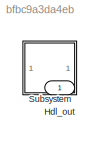
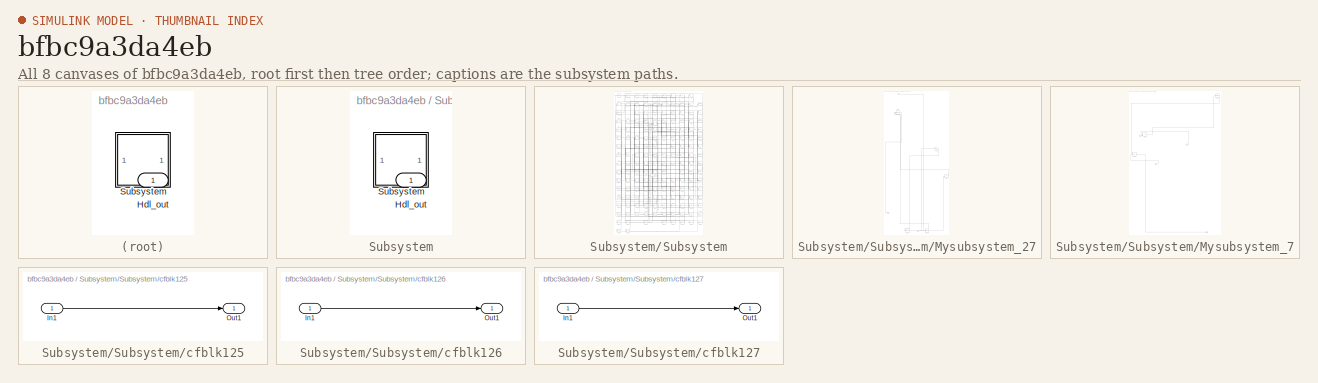
[diagram: thumbnail index - all 8 canvases of the model, root first then tree order]
MODEL slx_bfbc9a3da4eb
KIND model
CONFIG AbsTol = auto
CONFIG EnableMultiTasking = off
CONFIG FixedStep = auto
CONFIG MaxStep = auto
CONFIG MinStep = auto
CONFIG RelTol = 1e-3
CONFIG SampleTimeConstraint = Unconstrained
CONFIG SolverName = VariableStepAuto
CONFIG StartTime = 0.0
CONFIG StopTime = 10.0
BLOCK [Outport] Hdl_out
  OutDataTypeStr = uint8
BLOCK [SubSystem] Subsystem
BLOCK [Outport] Subsystem/Hdl_out
  OutDataTypeStr = uint8
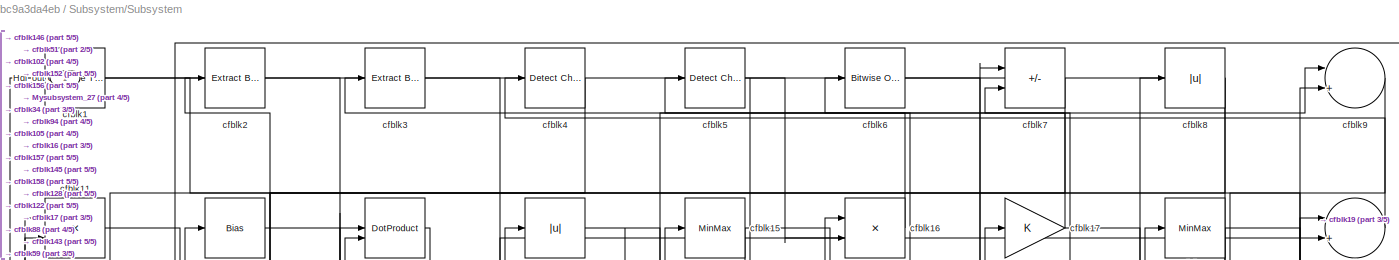
[diagram: Subsystem/Subsystem - part 1/5, full width, top band]
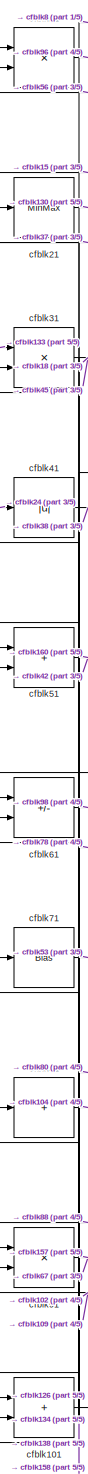
[diagram: Subsystem/Subsystem - part 2/5, middle left region]
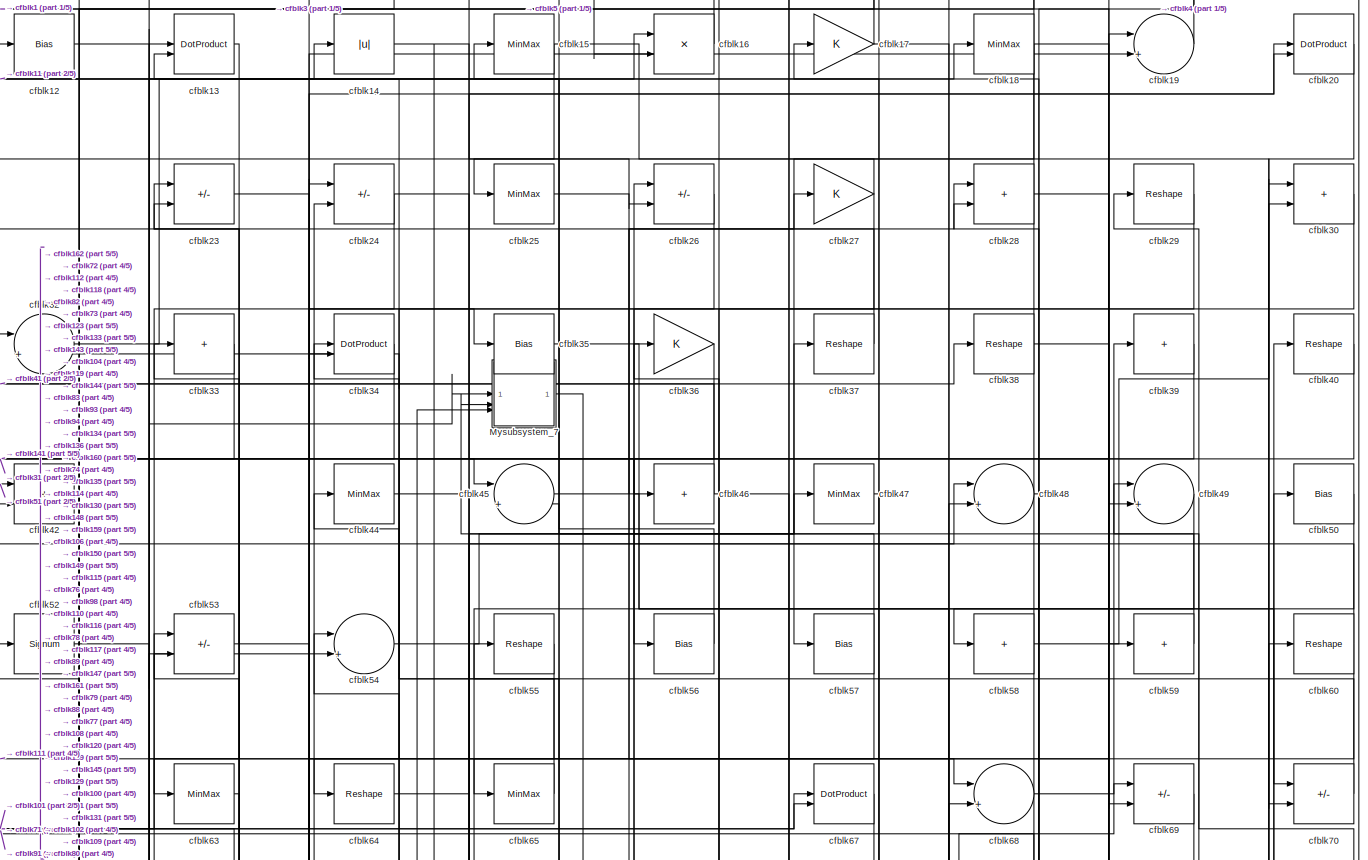
[diagram: Subsystem/Subsystem - part 3/5, full width, top band]
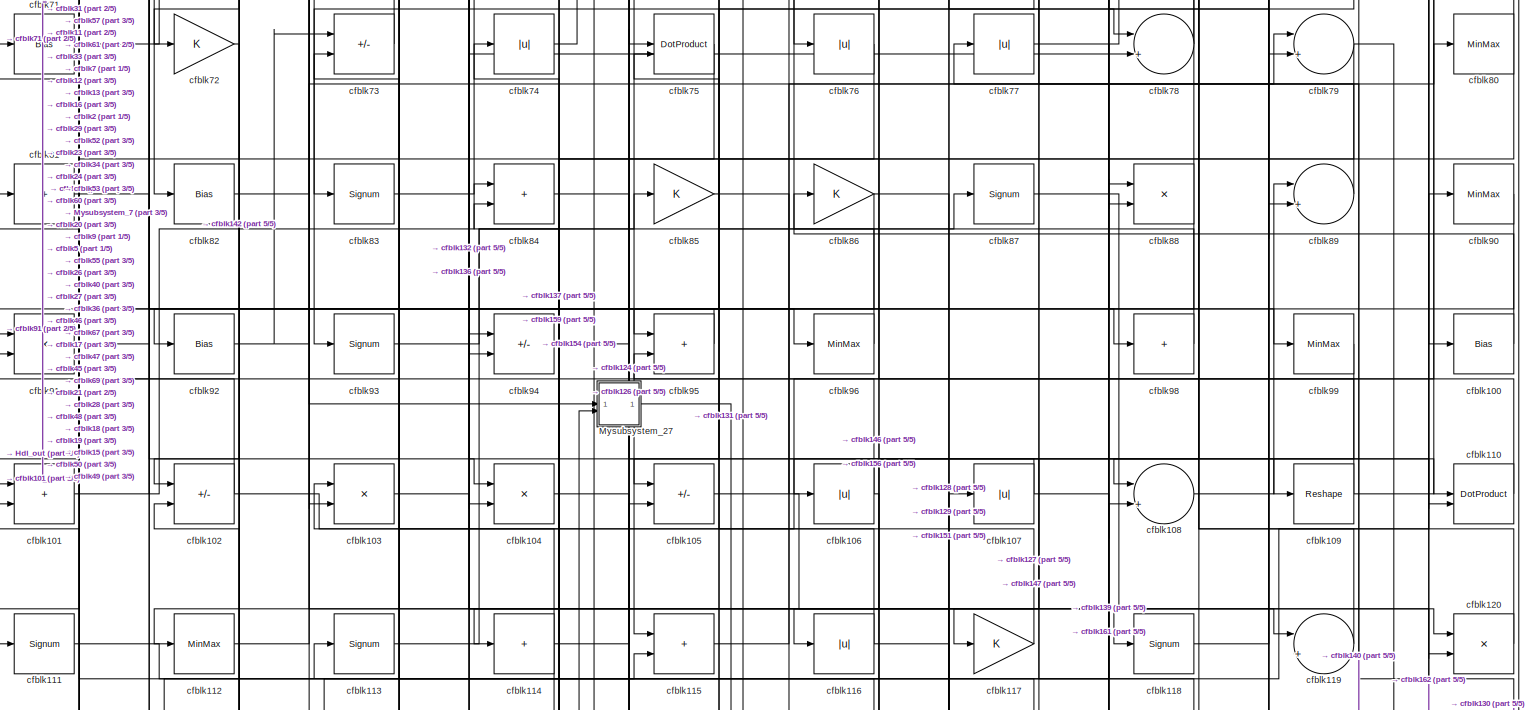
[diagram: Subsystem/Subsystem - part 4/5, full width, middle band]
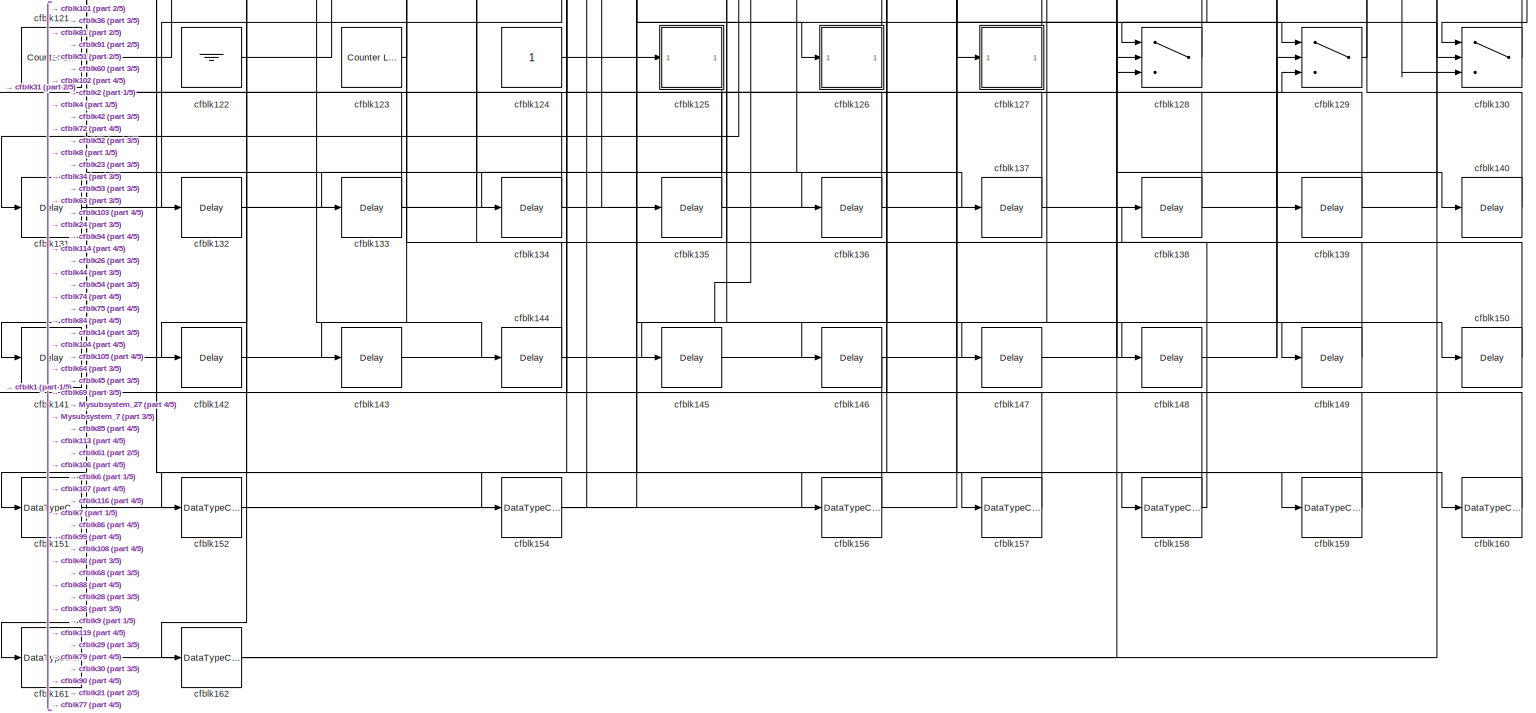
[diagram: Subsystem/Subsystem - part 5/5, full width, bottom band]
BLOCK [SubSystem] Subsystem/Subsystem
BLOCK [Outport] Subsystem/Subsystem/Hdl_out
  OutDataTypeStr = uint8
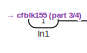
[diagram: Subsystem/Subsystem/Mysubsystem_27 - part 1/4, top left region]
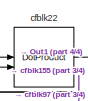
[diagram: Subsystem/Subsystem/Mysubsystem_27 - part 2/4, top left region]
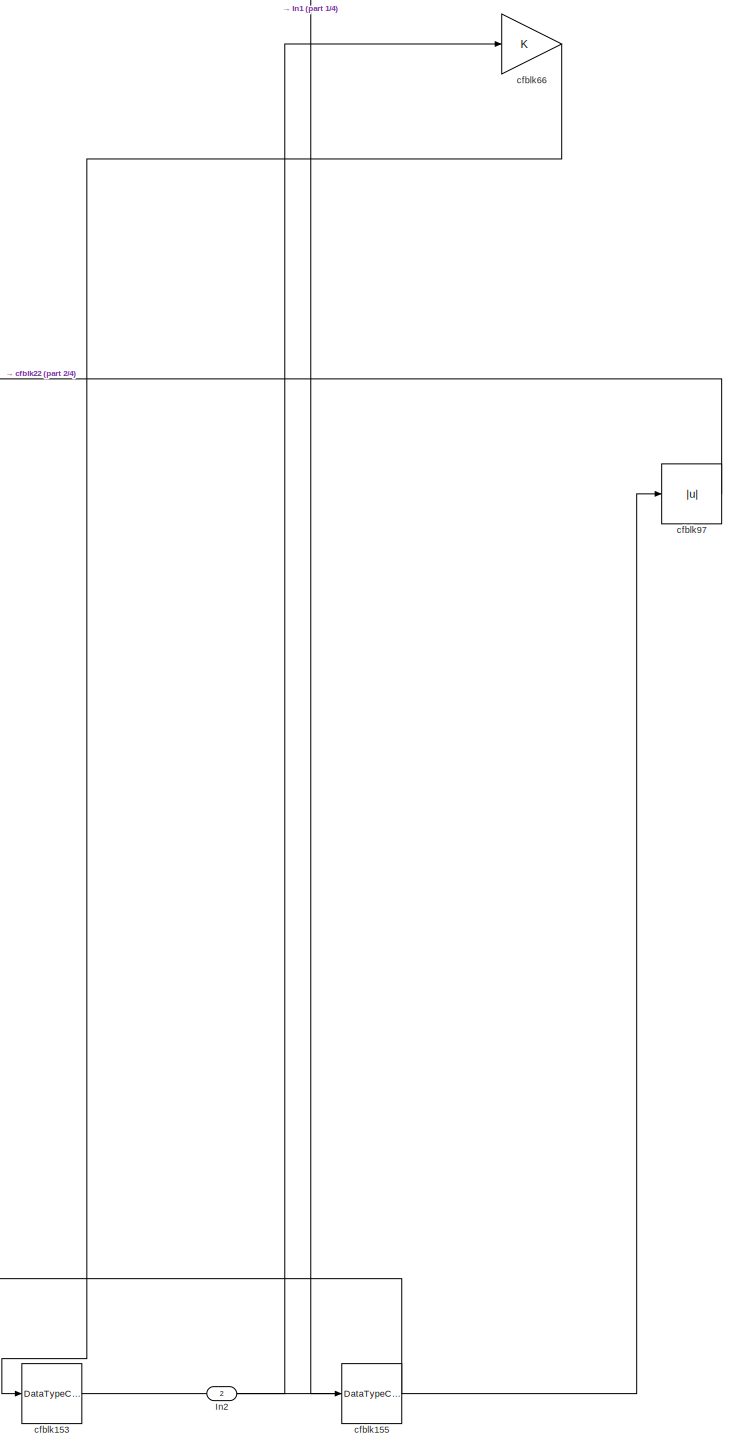
[diagram: Subsystem/Subsystem/Mysubsystem_27 - part 3/4, bottom center region]
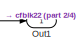
[diagram: Subsystem/Subsystem/Mysubsystem_27 - part 4/4, bottom left region]
BLOCK [SubSystem] Subsystem/Subsystem/Mysubsystem_27
  RTWFcnName = Mysubsystem_27
  RTWFcnNameOpts = User specified
  RTWFileNameOpts = Use function name
  RTWSystemCode = Reusable function
  TreatAsAtomicUnit = on
BLOCK [Inport] Subsystem/Subsystem/Mysubsystem_27/In1
BLOCK [Inport] Subsystem/Subsystem/Mysubsystem_27/In2
  Port = 2
BLOCK [Outport] Subsystem/Subsystem/Mysubsystem_27/Out1
BLOCK [DataTypeConversion] Subsystem/Subsystem/Mysubsystem_27/cfblk153
  OutDataTypeStr = uint8
  RndMeth = Floor
  SaturateOnIntegerOverflow = off
BLOCK [DataTypeConversion] Subsystem/Subsystem/Mysubsystem_27/cfblk155
  OutDataTypeStr = uint8
  RndMeth = Floor
  SaturateOnIntegerOverflow = off
BLOCK [DotProduct] Subsystem/Subsystem/Mysubsystem_27/cfblk22
  OutDataTypeStr = Inherit: Inherit via internal rule
BLOCK [Gain] Subsystem/Subsystem/Mysubsystem_27/cfblk66
BLOCK [Abs] Subsystem/Subsystem/Mysubsystem_27/cfblk97
  SaturateOnIntegerOverflow = off
BLOCK [SubSystem] Subsystem/Subsystem/Mysubsystem_7
  RTWFcnName = Mysubsystem_7
  RTWFcnNameOpts = User specified
  RTWFileNameOpts = Use function name
  RTWSystemCode = Reusable function
  TreatAsAtomicUnit = on
BLOCK [Inport] Subsystem/Subsystem/Mysubsystem_7/In1
BLOCK [Inport] Subsystem/Subsystem/Mysubsystem_7/In2
  Port = 2
BLOCK [Inport] Subsystem/Subsystem/Mysubsystem_7/In3
  Port = 3
BLOCK [Outport] Subsystem/Subsystem/Mysubsystem_7/Out1
BLOCK [MinMax] Subsystem/Subsystem/Mysubsystem_7/cfblk10
BLOCK [Sum] Subsystem/Subsystem/Mysubsystem_7/cfblk43
  IconShape = rectangular
BLOCK [Sum] Subsystem/Subsystem/Mysubsystem_7/cfblk62
  IconShape = rectangular
  Inputs = +-
BLOCK [Reference] Subsystem/Subsystem/cfblk1  REF=hdlsllib/Logic and Bit
Operations/Compare
To Constant
  SourceBlock = hdlsllib/Logic and Bit\nOperations/Compare\nTo Constant
  SourceType = Compare To Constant
BLOCK [Bias] Subsystem/Subsystem/cfblk100
  Bias = 0.0
  SaturateOnIntegerOverflow = off
BLOCK [Sum] Subsystem/Subsystem/cfblk101
  IconShape = rectangular
  OutDataTypeStr = uint8
BLOCK [Sum] Subsystem/Subsystem/cfblk102
  IconShape = rectangular
  Inputs = +-
  OutDataTypeStr = uint8
BLOCK [Product] Subsystem/Subsystem/cfblk103
  Inputs = */
  OutDataTypeStr = uint8
  RndMeth = Zero
  SaturateOnIntegerOverflow = on
BLOCK [Product] Subsystem/Subsystem/cfblk104
  Inputs = */
  OutDataTypeStr = uint8
  RndMeth = Zero
  SaturateOnIntegerOverflow = on
BLOCK [Sum] Subsystem/Subsystem/cfblk105
  IconShape = rectangular
  Inputs = +-
  OutDataTypeStr = uint8
BLOCK [Abs] Subsystem/Subsystem/cfblk106
  OutDataTypeStr = uint8
  SaturateOnIntegerOverflow = off
BLOCK [Abs] Subsystem/Subsystem/cfblk107
  OutDataTypeStr = uint8
  SaturateOnIntegerOverflow = off
BLOCK [Sum] Subsystem/Subsystem/cfblk108
  Inputs = |++
  OutDataTypeStr = uint8
BLOCK [Reshape] Subsystem/Subsystem/cfblk109
BLOCK [Product] Subsystem/Subsystem/cfblk11
  Inputs = */
  OutDataTypeStr = uint8
  RndMeth = Zero
  SaturateOnIntegerOverflow = on
BLOCK [DotProduct] Subsystem/Subsystem/cfblk110
  OutDataTypeStr = uint8
BLOCK [Signum] Subsystem/Subsystem/cfblk111
BLOCK [MinMax] Subsystem/Subsystem/cfblk112
  OutDataTypeStr = uint8
BLOCK [Signum] Subsystem/Subsystem/cfblk113
BLOCK [Sum] Subsystem/Subsystem/cfblk114
  IconShape = rectangular
  Inputs = +
  OutDataTypeStr = uint8
BLOCK [Sum] Subsystem/Subsystem/cfblk115
  IconShape = rectangular
  OutDataTypeStr = uint8
BLOCK [Abs] Subsystem/Subsystem/cfblk116
  OutDataTypeStr = uint8
  SaturateOnIntegerOverflow = off
BLOCK [Gain] Subsystem/Subsystem/cfblk117
  OutDataTypeStr = uint8
BLOCK [Signum] Subsystem/Subsystem/cfblk118
BLOCK [Sum] Subsystem/Subsystem/cfblk119
  Inputs = |++
  OutDataTypeStr = uint8
BLOCK [Bias] Subsystem/Subsystem/cfblk12
  Bias = 0.0
  SaturateOnIntegerOverflow = off
BLOCK [Product] Subsystem/Subsystem/cfblk120
  Inputs = */
  OutDataTypeStr = uint8
  RndMeth = Zero
  SaturateOnIntegerOverflow = on
BLOCK [Reference] Subsystem/Subsystem/cfblk121  REF=hdlsllib/Sources/Counter
Limited
  SourceBlock = hdlsllib/Sources/Counter\nLimited
  SourceType = Counter Limited
BLOCK [Ground] Subsystem/Subsystem/cfblk122
BLOCK [Reference] Subsystem/Subsystem/cfblk123  REF=hdlsllib/Sources/Counter
Limited
  SourceBlock = hdlsllib/Sources/Counter\nLimited
  SourceType = Counter Limited
BLOCK [Constant] Subsystem/Subsystem/cfblk124
  OutDataTypeStr = uint8
  SampleTime = -1
BLOCK [SubSystem] Subsystem/Subsystem/cfblk125
  LibrarySourceBlock = hdlsllib/Ports &\nSubsystems/Subsystem
BLOCK [Inport] Subsystem/Subsystem/cfblk125/In1
BLOCK [Outport] Subsystem/Subsystem/cfblk125/Out1
BLOCK [SubSystem] Subsystem/Subsystem/cfblk126
  LibrarySourceBlock = hdlsllib/Ports &\nSubsystems/Subsystem
BLOCK [Inport] Subsystem/Subsystem/cfblk126/In1
BLOCK [Outport] Subsystem/Subsystem/cfblk126/Out1
BLOCK [SubSystem] Subsystem/Subsystem/cfblk127
  LibrarySourceBlock = hdlsllib/Ports &\nSubsystems/Subsystem
BLOCK [Inport] Subsystem/Subsystem/cfblk127/In1
BLOCK [Outport] Subsystem/Subsystem/cfblk127/Out1
BLOCK [Switch] Subsystem/Subsystem/cfblk128
  InputSameDT = off
  OutDataTypeStr = uint8
  SaturateOnIntegerOverflow = off
BLOCK [Switch] Subsystem/Subsystem/cfblk129
  InputSameDT = off
  OutDataTypeStr = uint8
  SaturateOnIntegerOverflow = off
BLOCK [DotProduct] Subsystem/Subsystem/cfblk13
  OutDataTypeStr = uint8
BLOCK [Switch] Subsystem/Subsystem/cfblk130
  InputSameDT = off
  OutDataTypeStr = uint8
  SaturateOnIntegerOverflow = off
BLOCK [Delay] Subsystem/Subsystem/cfblk131
  InputPortMap = u0
  SampleTime = 1
BLOCK [Delay] Subsystem/Subsystem/cfblk132
  InputPortMap = u0
  SampleTime = 1
BLOCK [Delay] Subsystem/Subsystem/cfblk133
  InputPortMap = u0
  SampleTime = 1
BLOCK [Delay] Subsystem/Subsystem/cfblk134
  InputPortMap = u0
  SampleTime = 1
BLOCK [Delay] Subsystem/Subsystem/cfblk135
  InputPortMap = u0
  SampleTime = 1
BLOCK [Delay] Subsystem/Subsystem/cfblk136
  InputPortMap = u0
  SampleTime = 1
BLOCK [Delay] Subsystem/Subsystem/cfblk137
  InputPortMap = u0
  SampleTime = 1
BLOCK [Delay] Subsystem/Subsystem/cfblk138
  InputPortMap = u0
  SampleTime = 1
BLOCK [Delay] Subsystem/Subsystem/cfblk139
  InputPortMap = u0
  SampleTime = 1
BLOCK [Abs] Subsystem/Subsystem/cfblk14
  OutDataTypeStr = uint8
  SaturateOnIntegerOverflow = off
BLOCK [Delay] Subsystem/Subsystem/cfblk140
  InputPortMap = u0
  SampleTime = 1
BLOCK [Delay] Subsystem/Subsystem/cfblk141
  InputPortMap = u0
  SampleTime = 1
BLOCK [Delay] Subsystem/Subsystem/cfblk142
  InputPortMap = u0
  SampleTime = 1
BLOCK [Delay] Subsystem/Subsystem/cfblk143
  InputPortMap = u0
  SampleTime = 1
BLOCK [Delay] Subsystem/Subsystem/cfblk144
  InputPortMap = u0
  SampleTime = 1
BLOCK [Delay] Subsystem/Subsystem/cfblk145
  InputPortMap = u0
  SampleTime = 1
BLOCK [Delay] Subsystem/Subsystem/cfblk146
  InputPortMap = u0
  SampleTime = 1
BLOCK [Delay] Subsystem/Subsystem/cfblk147
  InputPortMap = u0
  SampleTime = 1
BLOCK [Delay] Subsystem/Subsystem/cfblk148
  InputPortMap = u0
  SampleTime = 1
BLOCK [Delay] Subsystem/Subsystem/cfblk149
  InputPortMap = u0
  SampleTime = 1
BLOCK [MinMax] Subsystem/Subsystem/cfblk15
  OutDataTypeStr = uint8
BLOCK [Delay] Subsystem/Subsystem/cfblk150
  InputPortMap = u0
  SampleTime = 1
BLOCK [DataTypeConversion] Subsystem/Subsystem/cfblk151
  OutDataTypeStr = uint8
  RndMeth = Floor
  SaturateOnIntegerOverflow = off
BLOCK [DataTypeConversion] Subsystem/Subsystem/cfblk152
  OutDataTypeStr = uint8
  RndMeth = Floor
  SaturateOnIntegerOverflow = off
BLOCK [DataTypeConversion] Subsystem/Subsystem/cfblk154
  OutDataTypeStr = uint8
  RndMeth = Floor
  SaturateOnIntegerOverflow = off
BLOCK [DataTypeConversion] Subsystem/Subsystem/cfblk156
  OutDataTypeStr = uint8
  RndMeth = Floor
  SaturateOnIntegerOverflow = off
BLOCK [DataTypeConversion] Subsystem/Subsystem/cfblk157
  OutDataTypeStr = uint8
  RndMeth = Floor
  SaturateOnIntegerOverflow = off
BLOCK [DataTypeConversion] Subsystem/Subsystem/cfblk158
  OutDataTypeStr = uint8
  RndMeth = Floor
  SaturateOnIntegerOverflow = off
BLOCK [DataTypeConversion] Subsystem/Subsystem/cfblk159
  OutDataTypeStr = uint8
  RndMeth = Floor
  SaturateOnIntegerOverflow = off
BLOCK [Product] Subsystem/Subsystem/cfblk16
  Inputs = */
  OutDataTypeStr = uint8
  RndMeth = Zero
  SaturateOnIntegerOverflow = on
BLOCK [DataTypeConversion] Subsystem/Subsystem/cfblk160
  OutDataTypeStr = uint8
  RndMeth = Floor
  SaturateOnIntegerOverflow = off
BLOCK [DataTypeConversion] Subsystem/Subsystem/cfblk161
  OutDataTypeStr = uint8
  RndMeth = Floor
  SaturateOnIntegerOverflow = off
BLOCK [DataTypeConversion] Subsystem/Subsystem/cfblk162
  OutDataTypeStr = uint8
  RndMeth = Floor
  SaturateOnIntegerOverflow = off
BLOCK [Gain] Subsystem/Subsystem/cfblk17
  OutDataTypeStr = uint8
BLOCK [MinMax] Subsystem/Subsystem/cfblk18
  OutDataTypeStr = uint8
BLOCK [Sum] Subsystem/Subsystem/cfblk19
  Inputs = |++
  OutDataTypeStr = uint8
BLOCK [Reference] Subsystem/Subsystem/cfblk2  REF=simulink/Logic and Bit
Operations/Extract Bits
  LibrarySourceBlock = hdlsllib/Logic and Bit\nOperations/Extract Bits
  SourceBlock = simulink/Logic and Bit\nOperations/Extract Bits
  SourceType = Extract Bits
BLOCK [DotProduct] Subsystem/Subsystem/cfblk20
  OutDataTypeStr = uint8
BLOCK [MinMax] Subsystem/Subsystem/cfblk21
  OutDataTypeStr = uint8
BLOCK [Sum] Subsystem/Subsystem/cfblk23
  IconShape = rectangular
  Inputs = +-
  OutDataTypeStr = uint8
BLOCK [Sum] Subsystem/Subsystem/cfblk24
  IconShape = rectangular
  Inputs = +-
  OutDataTypeStr = uint8
BLOCK [MinMax] Subsystem/Subsystem/cfblk25
  OutDataTypeStr = uint8
BLOCK [Sum] Subsystem/Subsystem/cfblk26
  IconShape = rectangular
  Inputs = +-
  OutDataTypeStr = uint8
BLOCK [Gain] Subsystem/Subsystem/cfblk27
  OutDataTypeStr = uint8
BLOCK [Sum] Subsystem/Subsystem/cfblk28
  IconShape = rectangular
  OutDataTypeStr = uint8
BLOCK [Reshape] Subsystem/Subsystem/cfblk29
BLOCK [Reference] Subsystem/Subsystem/cfblk3  REF=simulink/Logic and Bit
Operations/Extract Bits
  LibrarySourceBlock = hdlsllib/Logic and Bit\nOperations/Extract Bits
  SourceBlock = simulink/Logic and Bit\nOperations/Extract Bits
  SourceType = Extract Bits
BLOCK [Sum] Subsystem/Subsystem/cfblk30
  IconShape = rectangular
  OutDataTypeStr = uint8
BLOCK [Product] Subsystem/Subsystem/cfblk31
  Inputs = */
  OutDataTypeStr = uint8
  RndMeth = Zero
  SaturateOnIntegerOverflow = on
BLOCK [Sum] Subsystem/Subsystem/cfblk32
  Inputs = |++
  OutDataTypeStr = uint8
BLOCK [Sum] Subsystem/Subsystem/cfblk33
  IconShape = rectangular
  Inputs = +
  OutDataTypeStr = uint8
BLOCK [DotProduct] Subsystem/Subsystem/cfblk34
  OutDataTypeStr = uint8
BLOCK [Bias] Subsystem/Subsystem/cfblk35
  Bias = 0.0
  SaturateOnIntegerOverflow = off
BLOCK [Gain] Subsystem/Subsystem/cfblk36
  OutDataTypeStr = uint8
BLOCK [Reshape] Subsystem/Subsystem/cfblk37
BLOCK [Reshape] Subsystem/Subsystem/cfblk38
BLOCK [Sum] Subsystem/Subsystem/cfblk39
  IconShape = rectangular
  Inputs = +
  OutDataTypeStr = uint8
BLOCK [Reference] Subsystem/Subsystem/cfblk4  REF=simulink/Logic and Bit
Operations/Detect
Change
  LibrarySourceBlock = hdlsllib/Logic and Bit\nOperations/Detect\nChange
  SourceBlock = simulink/Logic and Bit\nOperations/Detect\nChange
  SourceType = Detect Change
BLOCK [Reshape] Subsystem/Subsystem/cfblk40
BLOCK [Abs] Subsystem/Subsystem/cfblk41
  OutDataTypeStr = uint8
  SaturateOnIntegerOverflow = off
BLOCK [Sum] Subsystem/Subsystem/cfblk42
  IconShape = rectangular
  OutDataTypeStr = uint8
BLOCK [MinMax] Subsystem/Subsystem/cfblk44
  OutDataTypeStr = uint8
BLOCK [Sum] Subsystem/Subsystem/cfblk45
  Inputs = |++
  OutDataTypeStr = uint8
BLOCK [Sum] Subsystem/Subsystem/cfblk46
  IconShape = rectangular
  Inputs = +
  OutDataTypeStr = uint8
BLOCK [MinMax] Subsystem/Subsystem/cfblk47
  OutDataTypeStr = uint8
BLOCK [Sum] Subsystem/Subsystem/cfblk48
  Inputs = |++
  OutDataTypeStr = uint8
BLOCK [Sum] Subsystem/Subsystem/cfblk49
  Inputs = |++
  OutDataTypeStr = uint8
BLOCK [Reference] Subsystem/Subsystem/cfblk5  REF=simulink/Logic and Bit
Operations/Detect
Change
  LibrarySourceBlock = hdlsllib/Logic and Bit\nOperations/Detect\nChange
  SourceBlock = simulink/Logic and Bit\nOperations/Detect\nChange
  SourceType = Detect Change
BLOCK [Bias] Subsystem/Subsystem/cfblk50
  Bias = 0.0
  SaturateOnIntegerOverflow = off
BLOCK [Sum] Subsystem/Subsystem/cfblk51
  IconShape = rectangular
  OutDataTypeStr = uint8
BLOCK [Signum] Subsystem/Subsystem/cfblk52
BLOCK [Sum] Subsystem/Subsystem/cfblk53
  IconShape = rectangular
  Inputs = +-
  OutDataTypeStr = uint8
BLOCK [Sum] Subsystem/Subsystem/cfblk54
  Inputs = |++
  OutDataTypeStr = uint8
BLOCK [Reshape] Subsystem/Subsystem/cfblk55
BLOCK [Bias] Subsystem/Subsystem/cfblk56
  Bias = 0.0
  SaturateOnIntegerOverflow = off
BLOCK [Bias] Subsystem/Subsystem/cfblk57
  Bias = 0.0
  SaturateOnIntegerOverflow = off
BLOCK [Sum] Subsystem/Subsystem/cfblk58
  IconShape = rectangular
  Inputs = +
  OutDataTypeStr = uint8
BLOCK [Sum] Subsystem/Subsystem/cfblk59
  IconShape = rectangular
  Inputs = +
  OutDataTypeStr = uint8
BLOCK [Reference] Subsystem/Subsystem/cfblk6  REF=simulink/Logic and Bit
Operations/Bitwise
Operator
  LibrarySourceBlock = hdlsllib/Logic and Bit\nOperations/Bitwise\nOperator
  SourceBlock = simulink/Logic and Bit\nOperations/Bitwise\nOperator
  SourceType = Bitwise Operator
BLOCK [Reshape] Subsystem/Subsystem/cfblk60
BLOCK [Sum] Subsystem/Subsystem/cfblk61
  IconShape = rectangular
  Inputs = +-
  OutDataTypeStr = uint8
BLOCK [MinMax] Subsystem/Subsystem/cfblk63
  OutDataTypeStr = uint8
BLOCK [Reshape] Subsystem/Subsystem/cfblk64
BLOCK [MinMax] Subsystem/Subsystem/cfblk65
  OutDataTypeStr = uint8
BLOCK [DotProduct] Subsystem/Subsystem/cfblk67
  OutDataTypeStr = uint8
BLOCK [Sum] Subsystem/Subsystem/cfblk68
  Inputs = |++
  OutDataTypeStr = uint8
BLOCK [Sum] Subsystem/Subsystem/cfblk69
  IconShape = rectangular
  Inputs = +-
  OutDataTypeStr = uint8
BLOCK [Sum] Subsystem/Subsystem/cfblk7
  IconShape = rectangular
  Inputs = +-
  OutDataTypeStr = uint8
BLOCK [Sum] Subsystem/Subsystem/cfblk70
  IconShape = rectangular
  Inputs = +-
  OutDataTypeStr = uint8
BLOCK [Bias] Subsystem/Subsystem/cfblk71
  Bias = 0.0
  SaturateOnIntegerOverflow = off
BLOCK [Gain] Subsystem/Subsystem/cfblk72
  OutDataTypeStr = uint8
BLOCK [Sum] Subsystem/Subsystem/cfblk73
  IconShape = rectangular
  Inputs = +-
  OutDataTypeStr = uint8
BLOCK [Abs] Subsystem/Subsystem/cfblk74
  OutDataTypeStr = uint8
  SaturateOnIntegerOverflow = off
BLOCK [DotProduct] Subsystem/Subsystem/cfblk75
  OutDataTypeStr = uint8
BLOCK [Abs] Subsystem/Subsystem/cfblk76
  OutDataTypeStr = uint8
  SaturateOnIntegerOverflow = off
BLOCK [Abs] Subsystem/Subsystem/cfblk77
  OutDataTypeStr = uint8
  SaturateOnIntegerOverflow = off
BLOCK [Sum] Subsystem/Subsystem/cfblk78
  Inputs = |++
  OutDataTypeStr = uint8
BLOCK [Sum] Subsystem/Subsystem/cfblk79
  Inputs = |++
  OutDataTypeStr = uint8
BLOCK [Abs] Subsystem/Subsystem/cfblk8
  OutDataTypeStr = uint8
  SaturateOnIntegerOverflow = off
BLOCK [MinMax] Subsystem/Subsystem/cfblk80
  OutDataTypeStr = uint8
BLOCK [Sum] Subsystem/Subsystem/cfblk81
  IconShape = rectangular
  Inputs = +
  OutDataTypeStr = uint8
BLOCK [Bias] Subsystem/Subsystem/cfblk82
  Bias = 0.0
  SaturateOnIntegerOverflow = off
BLOCK [Signum] Subsystem/Subsystem/cfblk83
BLOCK [Sum] Subsystem/Subsystem/cfblk84
  IconShape = rectangular
  OutDataTypeStr = uint8
BLOCK [Gain] Subsystem/Subsystem/cfblk85
  OutDataTypeStr = uint8
BLOCK [Gain] Subsystem/Subsystem/cfblk86
  OutDataTypeStr = uint8
BLOCK [Signum] Subsystem/Subsystem/cfblk87
BLOCK [Product] Subsystem/Subsystem/cfblk88
  Inputs = */
  OutDataTypeStr = uint8
  RndMeth = Zero
  SaturateOnIntegerOverflow = on
BLOCK [Sum] Subsystem/Subsystem/cfblk89
  Inputs = |++
  OutDataTypeStr = uint8
BLOCK [Sum] Subsystem/Subsystem/cfblk9
  Inputs = |++
  OutDataTypeStr = uint8
BLOCK [MinMax] Subsystem/Subsystem/cfblk90
  OutDataTypeStr = uint8
BLOCK [Product] Subsystem/Subsystem/cfblk91
  Inputs = */
  OutDataTypeStr = uint8
  RndMeth = Zero
  SaturateOnIntegerOverflow = on
BLOCK [Bias] Subsystem/Subsystem/cfblk92
  Bias = 0.0
  SaturateOnIntegerOverflow = off
BLOCK [Signum] Subsystem/Subsystem/cfblk93
BLOCK [Sum] Subsystem/Subsystem/cfblk94
  IconShape = rectangular
  Inputs = +-
  OutDataTypeStr = uint8
BLOCK [Sum] Subsystem/Subsystem/cfblk95
  IconShape = rectangular
  OutDataTypeStr = uint8
BLOCK [MinMax] Subsystem/Subsystem/cfblk96
  OutDataTypeStr = uint8
BLOCK [Sum] Subsystem/Subsystem/cfblk98
  IconShape = rectangular
  Inputs = +
  OutDataTypeStr = uint8
BLOCK [MinMax] Subsystem/Subsystem/cfblk99
  OutDataTypeStr = uint8
LINE Subsystem/Subsystem/Mysubsystem_27/In1:1 -> Subsystem/Subsystem/Mysubsystem_27/cfblk155:1
LINE Subsystem/Subsystem/Mysubsystem_27/In2:1 -> Subsystem/Subsystem/Mysubsystem_27/cfblk66:1
LINE Subsystem/Subsystem/Mysubsystem_27/cfblk153:1 -> Subsystem/Subsystem/Mysubsystem_27/cfblk97:1
LINE Subsystem/Subsystem/Mysubsystem_27/cfblk155:1 -> Subsystem/Subsystem/Mysubsystem_27/cfblk22:2
LINE Subsystem/Subsystem/Mysubsystem_27/cfblk22:1 -> Subsystem/Subsystem/Mysubsystem_27/Out1:1
LINE Subsystem/Subsystem/Mysubsystem_27/cfblk66:1 -> Subsystem/Subsystem/Mysubsystem_27/cfblk153:1
LINE Subsystem/Subsystem/Mysubsystem_27/cfblk97:1 -> Subsystem/Subsystem/Mysubsystem_27/cfblk22:1
LINE Subsystem/Subsystem/Mysubsystem_27:1 -> Subsystem/Subsystem/cfblk131:1
LINE Subsystem/Subsystem/Mysubsystem_7/In1:1 -> Subsystem/Subsystem/Mysubsystem_7/cfblk43:2
LINE Subsystem/Subsystem/Mysubsystem_7/In2:1 -> Subsystem/Subsystem/Mysubsystem_7/cfblk43:1
LINE Subsystem/Subsystem/Mysubsystem_7/In3:1 -> Subsystem/Subsystem/Mysubsystem_7/cfblk62:2
LINE Subsystem/Subsystem/Mysubsystem_7/cfblk10:1 -> Subsystem/Subsystem/Mysubsystem_7/cfblk62:1
LINE Subsystem/Subsystem/Mysubsystem_7/cfblk43:1 -> Subsystem/Subsystem/Mysubsystem_7/cfblk10:1
LINE Subsystem/Subsystem/Mysubsystem_7/cfblk62:1 -> Subsystem/Subsystem/Mysubsystem_7/Out1:1
LINE Subsystem/Subsystem/Mysubsystem_7:1 -> Subsystem/Subsystem/cfblk149:1
LINE Subsystem/Subsystem/cfblk100:1 -> Subsystem/Subsystem/cfblk86:1
NET Subsystem/Subsystem/cfblk101:1 -> Subsystem/Subsystem/cfblk24:2, Subsystem/Subsystem/cfblk41:1, Subsystem/Subsystem/cfblk67:1
NET Subsystem/Subsystem/cfblk102:1 -> Subsystem/Subsystem/cfblk40:1, Subsystem/Subsystem/cfblk71:1
LINE Subsystem/Subsystem/cfblk103:1 -> Subsystem/Subsystem/cfblk136:1
LINE Subsystem/Subsystem/cfblk104:1 -> Subsystem/Subsystem/cfblk126:1
NET Subsystem/Subsystem/cfblk105:1 -> Subsystem/Subsystem/cfblk127:1, Subsystem/Subsystem/cfblk79:1
NET Subsystem/Subsystem/cfblk106:1 -> Subsystem/Subsystem/cfblk156:1, Subsystem/Subsystem/cfblk55:1
NET Subsystem/Subsystem/cfblk107:1 -> Subsystem/Subsystem/cfblk106:1, Subsystem/Subsystem/cfblk140:1
LINE Subsystem/Subsystem/cfblk108:1 -> Subsystem/Subsystem/cfblk89:1
NET Subsystem/Subsystem/cfblk109:1 -> Subsystem/Subsystem/cfblk31:2, Subsystem/Subsystem/cfblk50:1
LINE Subsystem/Subsystem/cfblk110:1 -> Subsystem/Subsystem/cfblk36:1
LINE Subsystem/Subsystem/cfblk111:1 -> Subsystem/Subsystem/cfblk115:2
LINE Subsystem/Subsystem/cfblk112:1 -> Subsystem/Subsystem/cfblk13:1
LINE Subsystem/Subsystem/cfblk113:1 -> Subsystem/Subsystem/cfblk85:1
NET Subsystem/Subsystem/cfblk114:1 -> Subsystem/Subsystem/cfblk132:1, Subsystem/Subsystem/cfblk20:2, Subsystem/Subsystem/cfblk23:2
LINE Subsystem/Subsystem/cfblk115:1 -> Subsystem/Subsystem/cfblk28:1
NET Subsystem/Subsystem/cfblk116:1 -> Subsystem/Subsystem/cfblk128:3, Subsystem/Subsystem/cfblk73:2
NET Subsystem/Subsystem/cfblk117:1 -> Subsystem/Subsystem/cfblk112:1, Subsystem/Subsystem/cfblk95:2
LINE Subsystem/Subsystem/cfblk118:1 -> Subsystem/Subsystem/cfblk19:1
LINE Subsystem/Subsystem/cfblk119:1 -> Subsystem/Subsystem/cfblk12:1
LINE Subsystem/Subsystem/cfblk11:1 -> Subsystem/Subsystem/cfblk96:1
LINE Subsystem/Subsystem/cfblk120:1 -> Subsystem/Subsystem/cfblk28:2
LINE Subsystem/Subsystem/cfblk121:1 -> Subsystem/Subsystem/cfblk60:1
LINE Subsystem/Subsystem/cfblk122:1 -> Subsystem/Subsystem/cfblk8:1
LINE Subsystem/Subsystem/cfblk123:1 -> Subsystem/Subsystem/cfblk23:1
LINE Subsystem/Subsystem/cfblk124:1 -> Subsystem/Subsystem/cfblk105:2
LINE Subsystem/Subsystem/cfblk125/In1:1 -> Subsystem/Subsystem/cfblk125/Out1:1
LINE Subsystem/Subsystem/cfblk125:1 -> Subsystem/Subsystem/cfblk151:1
LINE Subsystem/Subsystem/cfblk126/In1:1 -> Subsystem/Subsystem/cfblk126/Out1:1
NET Subsystem/Subsystem/cfblk126:1 -> Subsystem/Subsystem/cfblk113:1, Subsystem/Subsystem/cfblk61:2
LINE Subsystem/Subsystem/cfblk127/In1:1 -> Subsystem/Subsystem/cfblk127/Out1:1
LINE Subsystem/Subsystem/cfblk127:1 -> Subsystem/Subsystem/cfblk103:1
LINE Subsystem/Subsystem/cfblk128:1 -> Subsystem/Subsystem/cfblk7:2
LINE Subsystem/Subsystem/cfblk129:1 -> Subsystem/Subsystem/cfblk29:1
NET Subsystem/Subsystem/cfblk12:1 -> Subsystem/Subsystem/cfblk118:1, Subsystem/Subsystem/cfblk46:1, Subsystem/Subsystem/cfblk54:2, Subsystem/Subsystem/cfblk68:1
LINE Subsystem/Subsystem/cfblk130:1 -> Subsystem/Subsystem/cfblk77:1
LINE Subsystem/Subsystem/cfblk131:1 -> Subsystem/Subsystem/cfblk30:1
LINE Subsystem/Subsystem/cfblk132:1 -> Subsystem/Subsystem/cfblk94:1
LINE Subsystem/Subsystem/cfblk133:1 -> Subsystem/Subsystem/cfblk31:1
LINE Subsystem/Subsystem/cfblk134:1 -> Subsystem/Subsystem/cfblk101:2
LINE Subsystem/Subsystem/cfblk135:1 -> Subsystem/Subsystem/cfblk129:3
LINE Subsystem/Subsystem/cfblk136:1 -> Subsystem/Subsystem/cfblk54:1
LINE Subsystem/Subsystem/cfblk137:1 -> Subsystem/Subsystem/cfblk84:2
LINE Subsystem/Subsystem/cfblk138:1 -> Subsystem/Subsystem/cfblk91:2
LINE Subsystem/Subsystem/cfblk139:1 -> Subsystem/Subsystem/cfblk88:1
LINE Subsystem/Subsystem/cfblk13:1 -> Subsystem/Subsystem/cfblk63:1
LINE Subsystem/Subsystem/cfblk140:1 -> Subsystem/Subsystem/cfblk119:2
LINE Subsystem/Subsystem/cfblk141:1 -> Subsystem/Subsystem/cfblk128:2
LINE Subsystem/Subsystem/cfblk142:1 -> Subsystem/Subsystem/cfblk102:2
LINE Subsystem/Subsystem/cfblk143:1 -> Subsystem/Subsystem/cfblk9:2
LINE Subsystem/Subsystem/cfblk144:1 -> Subsystem/Subsystem/cfblk24:1
LINE Subsystem/Subsystem/cfblk145:1 -> Subsystem/Subsystem/cfblk7:1
LINE Subsystem/Subsystem/cfblk146:1 -> Subsystem/Subsystem/cfblk1:1
LINE Subsystem/Subsystem/cfblk147:1 -> Subsystem/Subsystem/cfblk48:2
LINE Subsystem/Subsystem/cfblk148:1 -> Subsystem/Subsystem/cfblk129:2
LINE Subsystem/Subsystem/cfblk149:1 -> Subsystem/Subsystem/cfblk53:2
NET Subsystem/Subsystem/cfblk14:1 -> Subsystem/Subsystem/cfblk135:1, Subsystem/Subsystem/cfblk26:2
LINE Subsystem/Subsystem/cfblk150:1 -> Subsystem/Subsystem/cfblk45:2
LINE Subsystem/Subsystem/cfblk151:1 -> Subsystem/Subsystem/cfblk107:1
LINE Subsystem/Subsystem/cfblk152:1 -> Subsystem/Subsystem/cfblk125:1
LINE Subsystem/Subsystem/cfblk154:1 -> Subsystem/Subsystem/Mysubsystem_27:2
LINE Subsystem/Subsystem/cfblk156:1 -> Subsystem/Subsystem/cfblk2:1
LINE Subsystem/Subsystem/cfblk157:1 -> Subsystem/Subsystem/cfblk6:1
NET Subsystem/Subsystem/cfblk158:1 -> Subsystem/Subsystem/cfblk138:1, Subsystem/Subsystem/cfblk81:1
LINE Subsystem/Subsystem/cfblk159:1 -> Subsystem/Subsystem/cfblk74:1
NET Subsystem/Subsystem/cfblk15:1 -> Subsystem/Subsystem/cfblk100:1, Subsystem/Subsystem/cfblk51:2
LINE Subsystem/Subsystem/cfblk160:1 -> Subsystem/Subsystem/cfblk44:1
NET Subsystem/Subsystem/cfblk161:1 -> Subsystem/Subsystem/cfblk108:2, Subsystem/Subsystem/cfblk68:2
LINE Subsystem/Subsystem/cfblk162:1 -> Subsystem/Subsystem/cfblk90:1
LINE Subsystem/Subsystem/cfblk16:1 -> Subsystem/Subsystem/cfblk3:1
NET Subsystem/Subsystem/cfblk17:1 -> Subsystem/Subsystem/cfblk5:1, Subsystem/Subsystem/cfblk79:2
NET Subsystem/Subsystem/cfblk18:1 -> Subsystem/Subsystem/cfblk57:1, Subsystem/Subsystem/cfblk89:2
LINE Subsystem/Subsystem/cfblk19:1 -> Subsystem/Subsystem/cfblk4:1
LINE Subsystem/Subsystem/cfblk1:1 -> Subsystem/Subsystem/cfblk59:1
LINE Subsystem/Subsystem/cfblk20:1 -> Subsystem/Subsystem/cfblk70:2
LINE Subsystem/Subsystem/cfblk21:1 -> Subsystem/Subsystem/cfblk130:1
NET Subsystem/Subsystem/cfblk23:1 -> Subsystem/Subsystem/cfblk119:1, Subsystem/Subsystem/cfblk35:1
NET Subsystem/Subsystem/cfblk24:1 -> Subsystem/Subsystem/cfblk49:2, Subsystem/Subsystem/cfblk94:2
LINE Subsystem/Subsystem/cfblk25:1 -> Subsystem/Subsystem/cfblk69:2
LINE Subsystem/Subsystem/cfblk26:1 -> Subsystem/Subsystem/cfblk134:1
NET Subsystem/Subsystem/cfblk27:1 -> Subsystem/Subsystem/cfblk116:1, Subsystem/Subsystem/cfblk25:1
LINE Subsystem/Subsystem/cfblk28:1 -> Subsystem/Subsystem/cfblk139:1
LINE Subsystem/Subsystem/cfblk29:1 -> Subsystem/Subsystem/cfblk83:1
LINE Subsystem/Subsystem/cfblk2:1 -> Subsystem/Subsystem/Mysubsystem_27:1
LINE Subsystem/Subsystem/cfblk30:1 -> Subsystem/Subsystem/cfblk56:1
NET Subsystem/Subsystem/cfblk31:1 -> Subsystem/Subsystem/cfblk18:1, Subsystem/Subsystem/cfblk45:1, Subsystem/Subsystem/cfblk61:1
LINE Subsystem/Subsystem/cfblk32:1 -> Subsystem/Subsystem/cfblk14:1
LINE Subsystem/Subsystem/cfblk33:1 -> Subsystem/Subsystem/cfblk82:1
NET Subsystem/Subsystem/cfblk34:1 -> Subsystem/Subsystem/cfblk143:1, Subsystem/Subsystem/cfblk72:1
LINE Subsystem/Subsystem/cfblk35:1 -> Subsystem/Subsystem/cfblk70:1
LINE Subsystem/Subsystem/cfblk36:1 -> Subsystem/Subsystem/cfblk141:1
LINE Subsystem/Subsystem/cfblk37:1 -> Subsystem/Subsystem/cfblk11:1
LINE Subsystem/Subsystem/cfblk38:1 -> Subsystem/Subsystem/cfblk150:1
LINE Subsystem/Subsystem/cfblk39:1 -> Subsystem/Subsystem/cfblk64:1
LINE Subsystem/Subsystem/cfblk3:1 -> Subsystem/Subsystem/cfblk34:2
LINE Subsystem/Subsystem/cfblk40:1 -> Subsystem/Subsystem/cfblk76:1
LINE Subsystem/Subsystem/cfblk41:1 -> Subsystem/Subsystem/cfblk38:1
LINE Subsystem/Subsystem/cfblk42:1 -> Subsystem/Subsystem/cfblk162:1
LINE Subsystem/Subsystem/cfblk44:1 -> Subsystem/Subsystem/cfblk159:1
NET Subsystem/Subsystem/cfblk45:1 -> Subsystem/Subsystem/cfblk27:1, Subsystem/Subsystem/cfblk88:2
NET Subsystem/Subsystem/cfblk46:1 -> Subsystem/Subsystem/cfblk32:1, Subsystem/Subsystem/cfblk78:1
LINE Subsystem/Subsystem/cfblk47:1 -> Subsystem/Subsystem/cfblk117:1
LINE Subsystem/Subsystem/cfblk48:1 -> Subsystem/Subsystem/cfblk108:1
LINE Subsystem/Subsystem/cfblk49:1 -> Subsystem/Subsystem/cfblk65:1
LINE Subsystem/Subsystem/cfblk4:1 -> Subsystem/Subsystem/cfblk152:1
LINE Subsystem/Subsystem/cfblk50:1 -> Subsystem/Subsystem/cfblk58:1
NET Subsystem/Subsystem/cfblk51:1 -> Subsystem/Subsystem/cfblk160:1, Subsystem/Subsystem/cfblk42:1
LINE Subsystem/Subsystem/cfblk52:1 -> Subsystem/Subsystem/cfblk144:1
NET Subsystem/Subsystem/cfblk53:1 -> Subsystem/Subsystem/cfblk120:2, Subsystem/Subsystem/cfblk33:1
NET Subsystem/Subsystem/cfblk54:1 -> Subsystem/Subsystem/cfblk130:2, Subsystem/Subsystem/cfblk37:1, Subsystem/Subsystem/cfblk48:1
LINE Subsystem/Subsystem/cfblk55:1 -> Subsystem/Subsystem/cfblk115:1
LINE Subsystem/Subsystem/cfblk56:1 -> Subsystem/Subsystem/cfblk11:2
NET Subsystem/Subsystem/cfblk57:1 -> Subsystem/Subsystem/Mysubsystem_7:2, Subsystem/Subsystem/cfblk111:1
LINE Subsystem/Subsystem/cfblk58:1 -> Subsystem/Subsystem/cfblk30:2
LINE Subsystem/Subsystem/cfblk59:1 -> Subsystem/Subsystem/cfblk15:1
NET Subsystem/Subsystem/cfblk5:1 -> Subsystem/Subsystem/cfblk105:1, Subsystem/Subsystem/cfblk16:2
NET Subsystem/Subsystem/cfblk60:1 -> Subsystem/Subsystem/cfblk104:2, Subsystem/Subsystem/cfblk42:2
LINE Subsystem/Subsystem/cfblk61:1 -> Subsystem/Subsystem/cfblk98:1
LINE Subsystem/Subsystem/cfblk63:1 -> Subsystem/Subsystem/cfblk133:1
NET Subsystem/Subsystem/cfblk64:1 -> Subsystem/Subsystem/cfblk148:1, Subsystem/Subsystem/cfblk47:1
LINE Subsystem/Subsystem/cfblk65:1 -> Subsystem/Subsystem/cfblk34:1
LINE Subsystem/Subsystem/cfblk67:1 -> Subsystem/Subsystem/cfblk93:1
LINE Subsystem/Subsystem/cfblk68:1 -> Subsystem/Subsystem/cfblk39:1
LINE Subsystem/Subsystem/cfblk69:1 -> Subsystem/Subsystem/cfblk145:1
LINE Subsystem/Subsystem/cfblk6:1 -> Subsystem/Subsystem/cfblk158:1
NET Subsystem/Subsystem/cfblk70:1 -> Subsystem/Subsystem/cfblk13:2, Subsystem/Subsystem/cfblk32:2
LINE Subsystem/Subsystem/cfblk71:1 -> Subsystem/Subsystem/cfblk53:1
LINE Subsystem/Subsystem/cfblk72:1 -> Subsystem/Subsystem/cfblk142:1
LINE Subsystem/Subsystem/cfblk73:1 -> Subsystem/Subsystem/cfblk52:1
LINE Subsystem/Subsystem/cfblk74:1 -> Subsystem/Subsystem/Mysubsystem_7:3
LINE Subsystem/Subsystem/cfblk75:1 -> Subsystem/Subsystem/cfblk154:1
LINE Subsystem/Subsystem/cfblk76:1 -> Subsystem/Subsystem/cfblk114:1
NET Subsystem/Subsystem/cfblk77:1 -> Subsystem/Subsystem/cfblk69:1, Subsystem/Subsystem/cfblk99:1
LINE Subsystem/Subsystem/cfblk78:1 -> Subsystem/Subsystem/cfblk21:1
NET Subsystem/Subsystem/cfblk79:1 -> Subsystem/Subsystem/cfblk130:3, Subsystem/Subsystem/cfblk95:1
LINE Subsystem/Subsystem/cfblk7:1 -> Subsystem/Subsystem/cfblk102:1
NET Subsystem/Subsystem/cfblk80:1 -> Subsystem/Subsystem/cfblk49:1, Subsystem/Subsystem/cfblk91:1
LINE Subsystem/Subsystem/cfblk81:1 -> Subsystem/Subsystem/cfblk104:1
NET Subsystem/Subsystem/cfblk82:1 -> Subsystem/Subsystem/Mysubsystem_7:1, Subsystem/Subsystem/cfblk16:1
NET Subsystem/Subsystem/cfblk83:1 -> Subsystem/Subsystem/cfblk20:1, Subsystem/Subsystem/cfblk78:2, Subsystem/Subsystem/cfblk84:1
NET Subsystem/Subsystem/cfblk84:1 -> Subsystem/Subsystem/cfblk109:1, Subsystem/Subsystem/cfblk110:2
LINE Subsystem/Subsystem/cfblk85:1 -> Subsystem/Subsystem/cfblk137:1
NET Subsystem/Subsystem/cfblk86:1 -> Subsystem/Subsystem/cfblk103:2, Subsystem/Subsystem/cfblk129:1
LINE Subsystem/Subsystem/cfblk87:1 -> Subsystem/Subsystem/cfblk120:1
NET Subsystem/Subsystem/cfblk88:1 -> Subsystem/Subsystem/Hdl_out:1, Subsystem/Subsystem/cfblk101:1
LINE Subsystem/Subsystem/cfblk89:1 -> Subsystem/Subsystem/cfblk17:1
LINE Subsystem/Subsystem/cfblk8:1 -> Subsystem/Subsystem/cfblk51:1
LINE Subsystem/Subsystem/cfblk90:1 -> Subsystem/Subsystem/cfblk161:1
NET Subsystem/Subsystem/cfblk91:1 -> Subsystem/Subsystem/cfblk157:1, Subsystem/Subsystem/cfblk67:2
NET Subsystem/Subsystem/cfblk92:1 -> Subsystem/Subsystem/cfblk73:1, Subsystem/Subsystem/cfblk80:1
NET Subsystem/Subsystem/cfblk93:1 -> Subsystem/Subsystem/cfblk110:1, Subsystem/Subsystem/cfblk19:2, Subsystem/Subsystem/cfblk87:1
NET Subsystem/Subsystem/cfblk94:1 -> Subsystem/Subsystem/cfblk75:1, Subsystem/Subsystem/cfblk9:1
LINE Subsystem/Subsystem/cfblk95:1 -> Subsystem/Subsystem/cfblk92:1
LINE Subsystem/Subsystem/cfblk96:1 -> Subsystem/Subsystem/cfblk75:2
LINE Subsystem/Subsystem/cfblk98:1 -> Subsystem/Subsystem/cfblk26:1
NET Subsystem/Subsystem/cfblk99:1 -> Subsystem/Subsystem/cfblk146:1, Subsystem/Subsystem/cfblk147:1
LINE Subsystem/Subsystem/cfblk9:1 -> Subsystem/Subsystem/cfblk128:1
note: NET lines group one-source signal fan-out (src -> all destinations, sorted); 1:1 wires keep LINE
